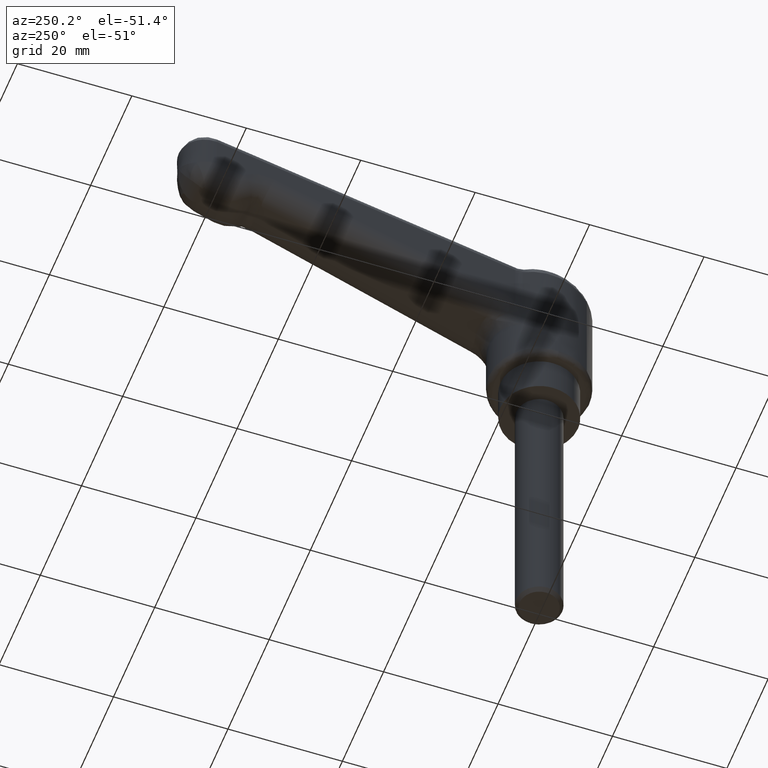
[diagram: clean part render]
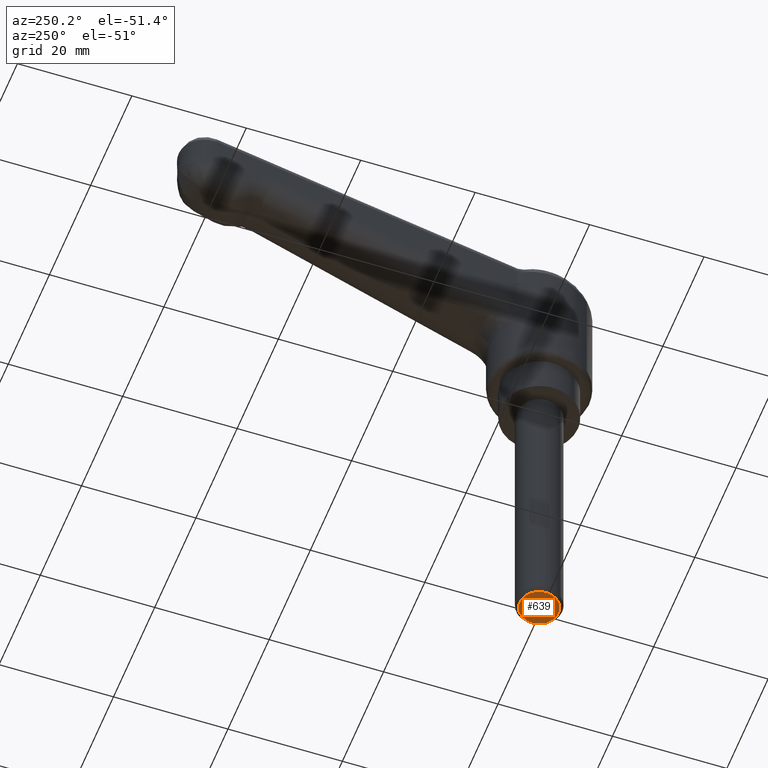
[diagram: same view with one face highlighted and labeled with its STEP entity id]
A machine part, auxiliary view. The second image highlights one B-rep face of the part: STEP entity #639.
In plain terms, the highlighted face is a freeform B-spline surface patch.
Its self-contained STEP definition (entity closure, byte-faithful):
#66=CARTESIAN_POINT('',(0.000001424418269,3.399999999999742,-50.0));
#67=VERTEX_POINT('',#66);
#68=CARTESIAN_POINT('',(2.383091872958123,2.425051908053615,-49.999999821974853));
#69=VERTEX_POINT('',#68);
#70=CARTESIAN_POINT('',(0.000001424418269,3.399999999999742,-50.0));
#71=CARTESIAN_POINT('',(0.385157118925772,3.400284231503276,-49.999999971227631));
#72=CARTESIAN_POINT('',(0.907583839823154,3.310221510854979,-49.999999932200240));
#73=CARTESIAN_POINT('',(1.719691389190772,2.966415018115484,-49.999999871533468));
#74=CARTESIAN_POINT('',(2.128157302733229,2.675863539682762,-49.999999841019083));
#75=CARTESIAN_POINT('',(2.383091872958123,2.425051908053615,-49.999999821974853));
#76=B_SPLINE_CURVE_WITH_KNOTS('',3,(#70,#71,#72,#73,#74,#75),.UNSPECIFIED.,.F.,.U.,(4,1,1,4),(0.000000028896614,1.155316256060663,1.567903280263912,2.640698144235548),.UNSPECIFIED.);
#77=EDGE_CURVE('',#67,#69,#76,.T.);
#79=CARTESIAN_POINT('',(-3.400000000000040,0.0,-50.0));
#80=VERTEX_POINT('',#79);
#81=CARTESIAN_POINT('',(-3.400000000000040,0.0,-50.0));
#82=CARTESIAN_POINT('',(-3.400252559036781,0.389446894367765,-50.000000000000099));
#83=CARTESIAN_POINT('',(-3.279204950864862,1.084721385423463,-49.999999999999929));
#84=CARTESIAN_POINT('',(-2.871897909731027,1.869520579302328,-50.000000000000071));
#85=CARTESIAN_POINT('',(-2.363610734944518,2.481223750897194,-49.999999999999922));
#86=CARTESIAN_POINT('',(-1.766139238827652,2.947498958313765,-50.000000000000291));
#87=CARTESIAN_POINT('',(-0.931774034081306,3.311193946234693,-49.999999999999837));
#88=CARTESIAN_POINT('',(-0.333805334113369,3.400148037085429,-50.000000000000092));
#89=CARTESIAN_POINT('',(0.000001424418269,3.399999999999742,-50.0));
#90=B_SPLINE_CURVE_WITH_KNOTS('',3,(#81,#82,#83,#84,#85,#86,#87,#88,#89),.UNSPECIFIED.,.F.,.U.,(4,1,1,1,1,1,4),(0.000000111841237,1.168287860881733,2.086244042374913,2.628679719055738,3.546577656145622,4.339355534704280,5.340741824615329),.UNSPECIFIED.);
#91=EDGE_CURVE('',#80,#67,#90,.T.);
#93=CARTESIAN_POINT('',(-0.000001424418248,-3.399999999999742,-50.0));
#94=VERTEX_POINT('',#93);
#95=CARTESIAN_POINT('',(-0.000001424418248,-3.399999999999742,-50.0));
#96=CARTESIAN_POINT('',(-0.194712460230441,-3.400009614507274,-50.000000000000028));
#97=CARTESIAN_POINT('',(-0.639780009134736,-3.361697535073767,-49.999999999999993));
#98=CARTESIAN_POINT('',(-1.217665169521677,-3.194112937553424,-49.999999999999993));
#99=CARTESIAN_POINT('',(-1.779703388012270,-2.915500044787582,-49.999999999999943));
#100=CARTESIAN_POINT('',(-2.244070752424494,-2.579852612366485,-50.000000000000362));
#101=CARTESIAN_POINT('',(-2.715752804545983,-2.084473993706596,-49.999999999999787));
#102=CARTESIAN_POINT('',(-3.057015956792559,-1.538184195205998,-50.000000000000107));
#103=CARTESIAN_POINT('',(-3.328774657329463,-0.820502303788475,-49.999999999999943));
#104=CARTESIAN_POINT('',(-3.400129107602322,-0.319902571025383,-50.0));
#105=CARTESIAN_POINT('',(-3.400000000000040,0.0,-50.0));
#106=B_SPLINE_CURVE_WITH_KNOTS('',3,(#95,#96,#97,#98,#99,#100,#101,#102,#103,#104,#105),.UNSPECIFIED.,.F.,.U.,(4,1,1,1,1,1,1,1,4),(0.000000112335979,0.584140755620227,1.335185888547041,1.794166911492900,2.461750199584571,3.045869029948695,3.838653985948531,4.381085904713193,5.340740218953902),.UNSPECIFIED.);
#107=EDGE_CURVE('',#94,#80,#106,.T.);
#109=CARTESIAN_POINT('',(2.425051146194456,-2.383091124281203,-50.000000178025182));
#110=VERTEX_POINT('',#109);
#111=CARTESIAN_POINT('',(2.425051146194456,-2.383091124281203,-50.000000178025182));
#112=CARTESIAN_POINT('',(2.198437711117779,-2.613906914069188,-50.000000161389288));
#113=CARTESIAN_POINT('',(1.825516854252337,-2.897941850319858,-50.000000134012822));
#114=CARTESIAN_POINT('',(1.190146353662297,-3.202285121743761,-50.000000087369848));
#115=CARTESIAN_POINT('',(0.632825790998687,-3.362058108303306,-50.000000046456279));
#116=CARTESIAN_POINT('',(0.196874042887235,-3.400008409700350,-50.000000014452873));
#117=CARTESIAN_POINT('',(-0.000001424418248,-3.399999999999742,-50.0));
#118=B_SPLINE_CURVE_WITH_KNOTS('',3,(#111,#112,#113,#114,#115,#116,#117),.UNSPECIFIED.,.F.,.U.,(4,1,1,1,4),(0.000000028581054,0.970335192116933,1.392193010693198,2.109410317790218,2.700042885253096),.UNSPECIFIED.);
#119=EDGE_CURVE('',#110,#94,#118,.T.);
#220=CARTESIAN_POINT('',(3.400000000000040,0.0,-50.0));
#221=VERTEX_POINT('',#220);
#222=CARTESIAN_POINT('',(2.383091872958123,2.425051908053615,-49.999999821974853));
#223=CARTESIAN_POINT('',(2.563671515405733,2.247663350688434,-49.999999834997041));
#224=CARTESIAN_POINT('',(2.840272407674324,1.907193949392707,-49.999999859991419));
#225=CARTESIAN_POINT('',(3.165720376334058,1.297268069405314,-49.999999904766263));
#226=CARTESIAN_POINT('',(3.356712756646519,0.675005934823100,-49.999999950447339));
#227=CARTESIAN_POINT('',(3.400014659709350,0.210938105520756,-49.999999984514979));
#228=CARTESIAN_POINT('',(3.400000000000040,0.0,-50.0));
#229=B_SPLINE_CURVE_WITH_KNOTS('',3,(#222,#223,#224,#225,#226,#227,#228),.UNSPECIFIED.,.F.,.U.,(4,1,1,1,4),(0.000000028567080,0.759388608146759,1.307849418580054,2.067220144152980,2.700041884932861),.UNSPECIFIED.);
#230=EDGE_CURVE('',#69,#221,#229,.T.);
#255=CARTESIAN_POINT('',(3.400000000000040,0.0,-50.0));
#256=CARTESIAN_POINT('',(3.400169147808953,-0.343860671169865,-50.000000025687477));
#257=CARTESIAN_POINT('',(3.303198745241295,-0.976424172023950,-50.000000072942342));
#258=CARTESIAN_POINT('',(2.932593102526771,-1.782727784438496,-50.000000133176087));
#259=CARTESIAN_POINT('',(2.598593835580958,-2.206537470587806,-50.000000164836003));
#260=CARTESIAN_POINT('',(2.425051146194456,-2.383091124281203,-50.000000178025182));
#261=B_SPLINE_CURVE_WITH_KNOTS('',3,(#255,#256,#257,#258,#259,#260),.UNSPECIFIED.,.F.,.U.,(4,1,1,4),(0.000000028883979,1.031525397991558,1.898001251888138,2.640699153876377),.UNSPECIFIED.);
#262=EDGE_CURVE('',#221,#110,#261,.T.);
#626=CARTESIAN_POINT('',(-3.739660114487394,-3.739660114487066,-50.0));
#627=CARTESIAN_POINT('',(3.739660175284131,-3.739660114487066,-50.0));
#628=CARTESIAN_POINT('',(-3.739660114487394,3.739660175283803,-50.0));
#629=CARTESIAN_POINT('',(3.739660175284131,3.739660175283803,-50.0));
#630=B_SPLINE_SURFACE_WITH_KNOTS('',1,1,((#626,#628),(#627,#629)),.UNSPECIFIED.,.F.,.F.,.U.,(2,2),(2,2),(0.0,7.479320289771525),(0.0,7.479320289770869),.UNSPECIFIED.);
#631=ORIENTED_EDGE('',*,*,#262,.T.);
#632=ORIENTED_EDGE('',*,*,#119,.T.);
#633=ORIENTED_EDGE('',*,*,#107,.T.);
#634=ORIENTED_EDGE('',*,*,#91,.T.);
#635=ORIENTED_EDGE('',*,*,#77,.T.);
#636=ORIENTED_EDGE('',*,*,#230,.T.);
#637=EDGE_LOOP('',(#631,#632,#633,#634,#635,#636));
#638=FACE_OUTER_BOUND('',#637,.T.);
#639=ADVANCED_FACE('',(#638),#630,.F.);